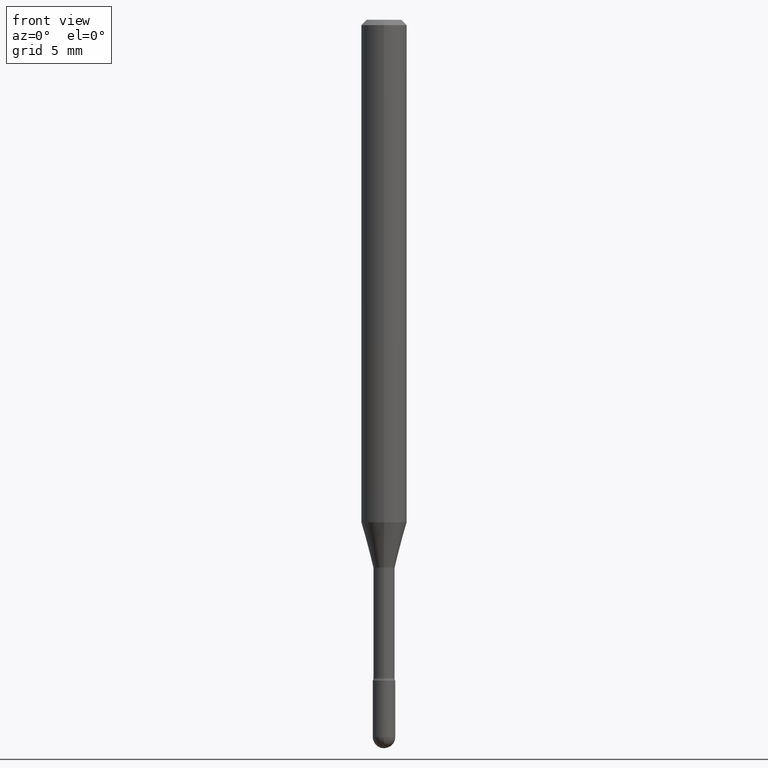
[diagram: clean part render]
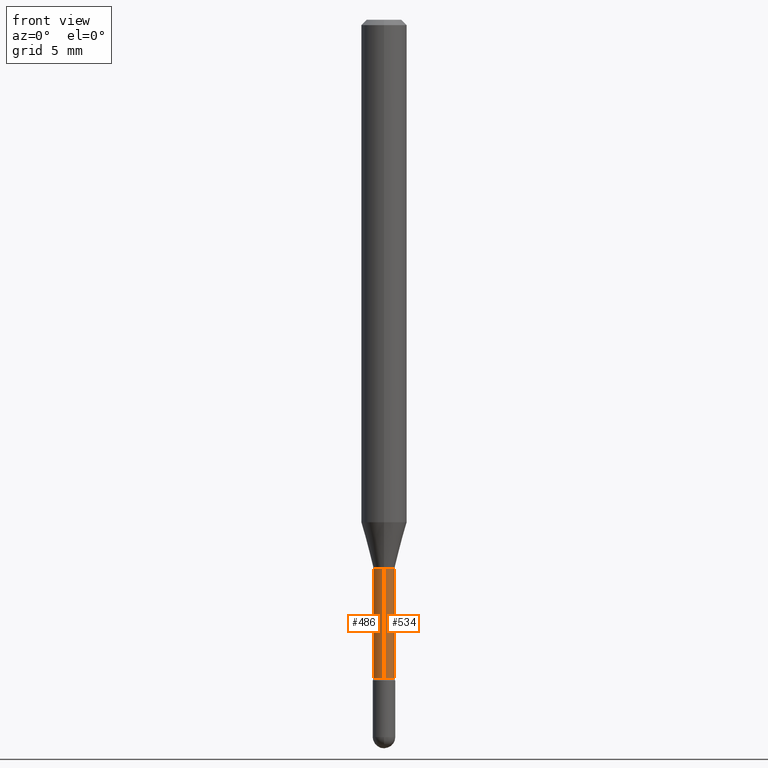
[diagram: same view with one multi-face feature highlighted, each face labeled with its STEP entity id]
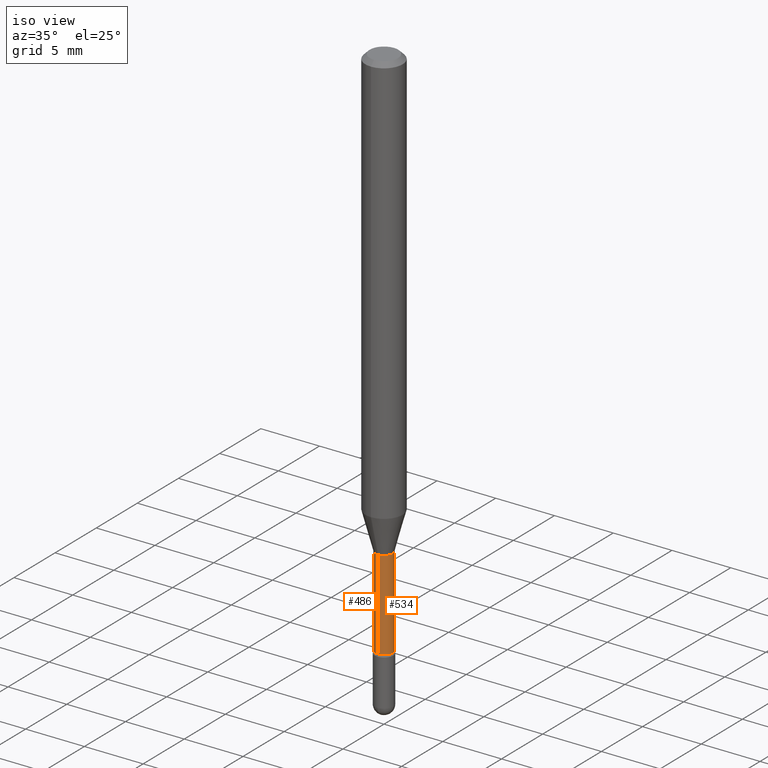
[diagram: same view with one multi-face feature highlighted, each face labeled with its STEP entity id]
A machine part, front view. The highlighted faces form ONE feature: a constant-radius fillet chain: 2 tangent blend faces with common blend radius 0.7404 mm. The faces share edges in the B-rep.
A second angle (iso view) of the same feature is appended — it is thin or edge-on in the first view.
Their STEP definitions:
[1] entity #534 (Cylinder):
#5 = EDGE_CURVE ( 'NONE', #31, #410, #154, .T. ) ;
#7 = VERTEX_POINT ( 'NONE', #123 ) ;
#13 = ORIENTED_EDGE ( 'NONE', *, *, #33, .F. ) ;
#15 = EDGE_CURVE ( 'NONE', #37, #7, #128, .T. ) ;
#18 = EDGE_CURVE ( 'NONE', #7, #410, #513, .T. ) ;
#31 = VERTEX_POINT ( 'NONE', #144 ) ;
#33 = EDGE_CURVE ( 'NONE', #37, #31, #319, .T. ) ;
#37 = VERTEX_POINT ( 'NONE', #229 ) ;
#54 = DIRECTION ( 'NONE',  ( -2.445444533372824167E-29, 3.491516098891900395E-15, 1.000000000000000000 ) ) ;
#73 = EDGE_LOOP ( 'NONE', ( #516, #255, #161, #13 ) ) ;
#84 = DIRECTION ( 'NONE',  ( -2.445444533372824167E-29, 3.491516098891900395E-15, 1.000000000000000000 ) ) ;
#104 = VECTOR ( 'NONE', #54, 39.37007874015748143 ) ;
#115 = DIRECTION ( 'NONE',  ( -2.445444533372823887E-29, 3.491516098891900000E-15, 1.000000000000000000 ) ) ;
#123 = CARTESIAN_POINT ( 'NONE',  ( 2.136957277798944871E-16, 0.02914999999999371566, -1.806783525791634704 ) ) ;
#128 = CIRCLE ( 'NONE', #194, 0.02915000000000002311 ) ;
#144 = CARTESIAN_POINT ( 'NONE',  ( -2.035533620545178324E-16, -0.02915000000000525851, -1.505974787463811193 ) ) ;
#146 = CYLINDRICAL_SURFACE ( 'NONE', #219, 0.02915000000000001271 ) ;
#154 = CIRCLE ( 'NONE', #443, 0.02914999999999999883 ) ;
#161 = ORIENTED_EDGE ( 'NONE', *, *, #5, .F. ) ;
#194 = AXIS2_PLACEMENT_3D ( 'NONE', #379, #558, #341 ) ;
#219 = AXIS2_PLACEMENT_3D ( 'NONE', #396, #427, #392 ) ;
#229 = CARTESIAN_POINT ( 'NONE',  ( -2.035533620545106341E-16, -0.02915000000000633404, -1.806783525791634704 ) ) ;
#255 = ORIENTED_EDGE ( 'NONE', *, *, #18, .T. ) ;
#270 = FACE_OUTER_BOUND ( 'NONE', #73, .T. ) ;
#319 = LINE ( 'NONE', #435, #104 ) ;
#341 = DIRECTION ( 'NONE',  ( -6.982962677686266711E-15, -1.000000000000000000, 0.000000000000000000 ) ) ;
#344 = CARTESIAN_POINT ( 'NONE',  ( 3.682777811400677476E-29, -5.258135214955204492E-15, -1.505974787463811193 ) ) ;
#349 = CARTESIAN_POINT ( 'NONE',  ( 2.071232074741134460E-16, 0.02914999999999473568, -1.505974787463811193 ) ) ;
#377 = DIRECTION ( 'NONE',  ( -6.982962677686265922E-15, -1.000000000000000000, 0.000000000000000000 ) ) ;
#379 = CARTESIAN_POINT ( 'NONE',  ( 4.418388896135229414E-29, -6.308413767514161632E-15, -1.806783525791634704 ) ) ;
#392 = DIRECTION ( 'NONE',  ( -6.982962677686265922E-15, -1.000000000000000000, 3.491516098891900000E-15 ) ) ;
#396 = CARTESIAN_POINT ( 'NONE',  ( -1.169113584055446105E-44, 1.669184350826100908E-30, 4.780733988912460139E-16 ) ) ;
#410 = VERTEX_POINT ( 'NONE', #349 ) ;
#427 = DIRECTION ( 'NONE',  ( -2.445444533372823887E-29, 3.491516098891900000E-15, 1.000000000000000000 ) ) ;
#435 = CARTESIAN_POINT ( 'NONE',  ( -2.035533620545547363E-16, -0.02915000000000001271, 5.798510931739450185E-16 ) ) ;
#443 = AXIS2_PLACEMENT_3D ( 'NONE', #344, #115, #377 ) ;
#465 = CARTESIAN_POINT ( 'NONE',  ( 2.071232074740692452E-16, 0.02915000000000001271, 3.762957046085471080E-16 ) ) ;
#513 = LINE ( 'NONE', #465, #521 ) ;
#516 = ORIENTED_EDGE ( 'NONE', *, *, #15, .T. ) ;
#521 = VECTOR ( 'NONE', #84, 39.37007874015748143 ) ;
#534 = ADVANCED_FACE ( 'NONE', ( #270 ), #146, .T. ) ;
#558 = DIRECTION ( 'NONE',  ( -2.445444533372823887E-29, 3.491516098891900000E-15, 1.000000000000000000 ) ) ;
[2] entity #486 (Cylinder):
#2 = CARTESIAN_POINT ( 'NONE',  ( -1.169113584055446105E-44, 1.669184350826100908E-30, 4.780733988912460139E-16 ) ) ;
#7 = VERTEX_POINT ( 'NONE', #123 ) ;
#18 = EDGE_CURVE ( 'NONE', #7, #410, #513, .T. ) ;
#31 = VERTEX_POINT ( 'NONE', #144 ) ;
#33 = EDGE_CURVE ( 'NONE', #37, #31, #319, .T. ) ;
#37 = VERTEX_POINT ( 'NONE', #229 ) ;
#54 = DIRECTION ( 'NONE',  ( -2.445444533372824167E-29, 3.491516098891900395E-15, 1.000000000000000000 ) ) ;
#84 = DIRECTION ( 'NONE',  ( -2.445444533372824167E-29, 3.491516098891900395E-15, 1.000000000000000000 ) ) ;
#93 = FACE_OUTER_BOUND ( 'NONE', #205, .T. ) ;
#97 = CARTESIAN_POINT ( 'NONE',  ( 4.418388896135229414E-29, -6.308413767514161632E-15, -1.806783525791634704 ) ) ;
#104 = VECTOR ( 'NONE', #54, 39.37007874015748143 ) ;
#123 = CARTESIAN_POINT ( 'NONE',  ( 2.136957277798944871E-16, 0.02914999999999371566, -1.806783525791634704 ) ) ;
#140 = CARTESIAN_POINT ( 'NONE',  ( 3.682777811400677476E-29, -5.258135214955204492E-15, -1.505974787463811193 ) ) ;
#144 = CARTESIAN_POINT ( 'NONE',  ( -2.035533620545178324E-16, -0.02915000000000525851, -1.505974787463811193 ) ) ;
#170 = ORIENTED_EDGE ( 'NONE', *, *, #260, .T. ) ;
#177 = ORIENTED_EDGE ( 'NONE', *, *, #539, .F. ) ;
#197 = CIRCLE ( 'NONE', #253, 0.02915000000000002311 ) ;
#205 = EDGE_LOOP ( 'NONE', ( #470, #170, #361, #177 ) ) ;
#229 = CARTESIAN_POINT ( 'NONE',  ( -2.035533620545106341E-16, -0.02915000000000633404, -1.806783525791634704 ) ) ;
#253 = AXIS2_PLACEMENT_3D ( 'NONE', #97, #398, #267 ) ;
#260 = EDGE_CURVE ( 'NONE', #7, #37, #197, .T. ) ;
#264 = CYLINDRICAL_SURFACE ( 'NONE', #311, 0.02915000000000001271 ) ;
#267 = DIRECTION ( 'NONE',  ( -6.982962677686266711E-15, -1.000000000000000000, 0.000000000000000000 ) ) ;
#311 = AXIS2_PLACEMENT_3D ( 'NONE', #2, #352, #475 ) ;
#314 = DIRECTION ( 'NONE',  ( -6.982962677686265922E-15, -1.000000000000000000, 0.000000000000000000 ) ) ;
#319 = LINE ( 'NONE', #435, #104 ) ;
#349 = CARTESIAN_POINT ( 'NONE',  ( 2.071232074741134460E-16, 0.02914999999999473568, -1.505974787463811193 ) ) ;
#352 = DIRECTION ( 'NONE',  ( -2.445444533372823887E-29, 3.491516098891900000E-15, 1.000000000000000000 ) ) ;
#358 = AXIS2_PLACEMENT_3D ( 'NONE', #140, #432, #314 ) ;
#361 = ORIENTED_EDGE ( 'NONE', *, *, #33, .T. ) ;
#398 = DIRECTION ( 'NONE',  ( -2.445444533372823887E-29, 3.491516098891900000E-15, 1.000000000000000000 ) ) ;
#410 = VERTEX_POINT ( 'NONE', #349 ) ;
#432 = DIRECTION ( 'NONE',  ( -2.445444533372823887E-29, 3.491516098891900000E-15, 1.000000000000000000 ) ) ;
#435 = CARTESIAN_POINT ( 'NONE',  ( -2.035533620545547363E-16, -0.02915000000000001271, 5.798510931739450185E-16 ) ) ;
#465 = CARTESIAN_POINT ( 'NONE',  ( 2.071232074740692452E-16, 0.02915000000000001271, 3.762957046085471080E-16 ) ) ;
#470 = ORIENTED_EDGE ( 'NONE', *, *, #18, .F. ) ;
#475 = DIRECTION ( 'NONE',  ( -6.982962677686265922E-15, -1.000000000000000000, 3.491516098891900000E-15 ) ) ;
#479 = CIRCLE ( 'NONE', #358, 0.02914999999999999883 ) ;
#486 = ADVANCED_FACE ( 'NONE', ( #93 ), #264, .T. ) ;
#513 = LINE ( 'NONE', #465, #521 ) ;
#521 = VECTOR ( 'NONE', #84, 39.37007874015748143 ) ;
#539 = EDGE_CURVE ( 'NONE', #410, #31, #479, .T. ) ;